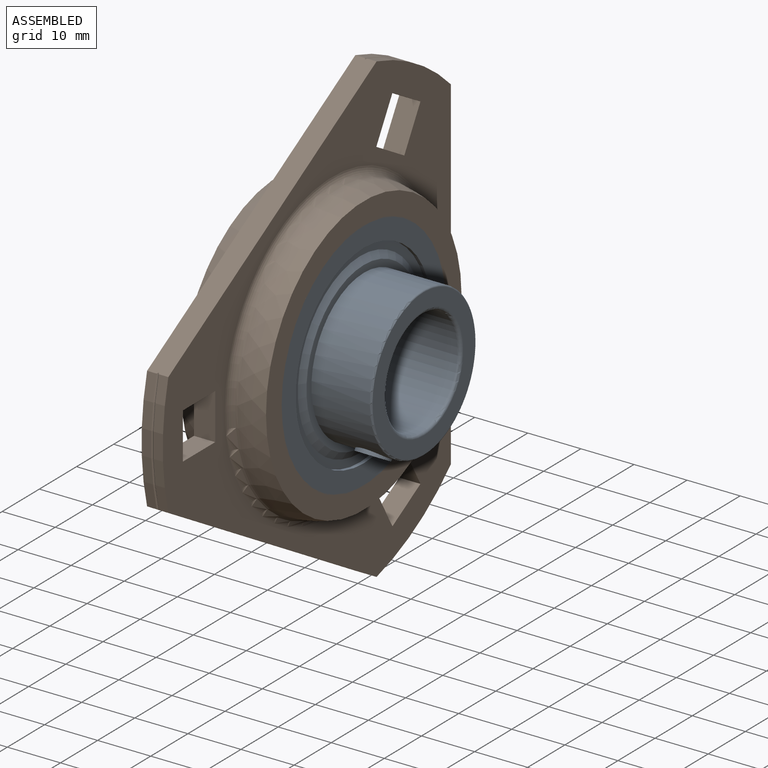
[diagram: assembled view]
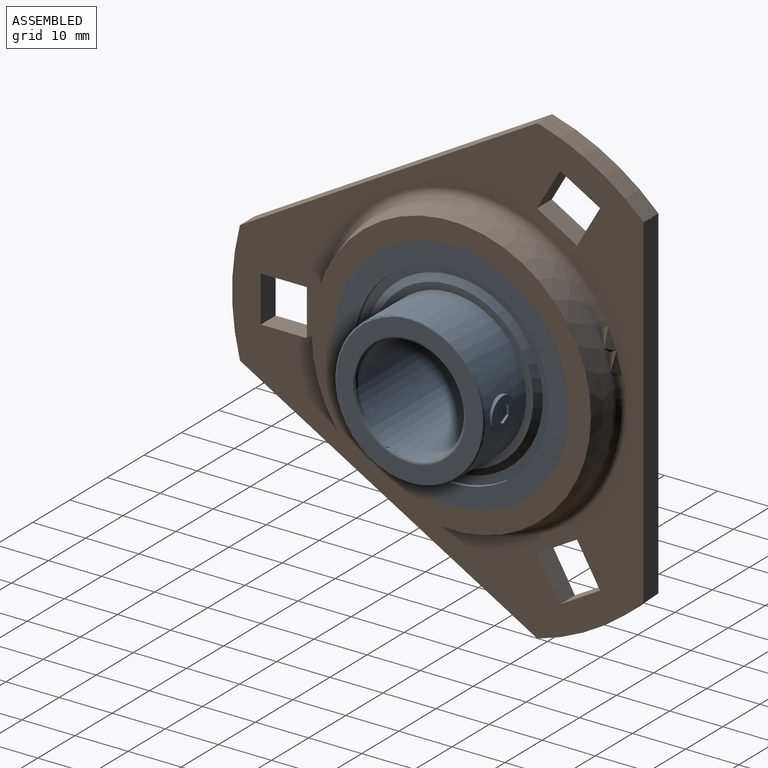
[diagram: assembled view, second angle]
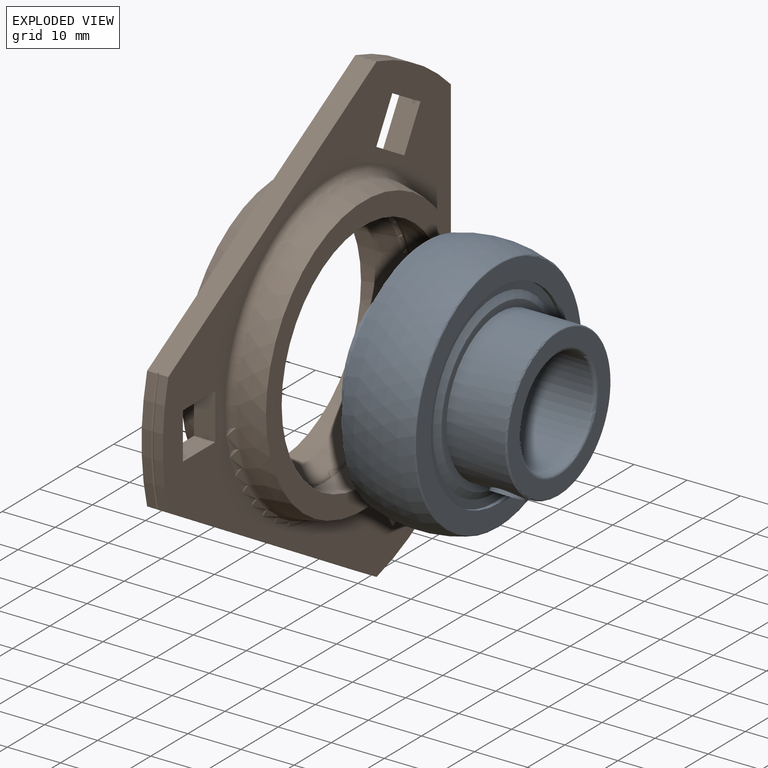
[diagram: exploded view]
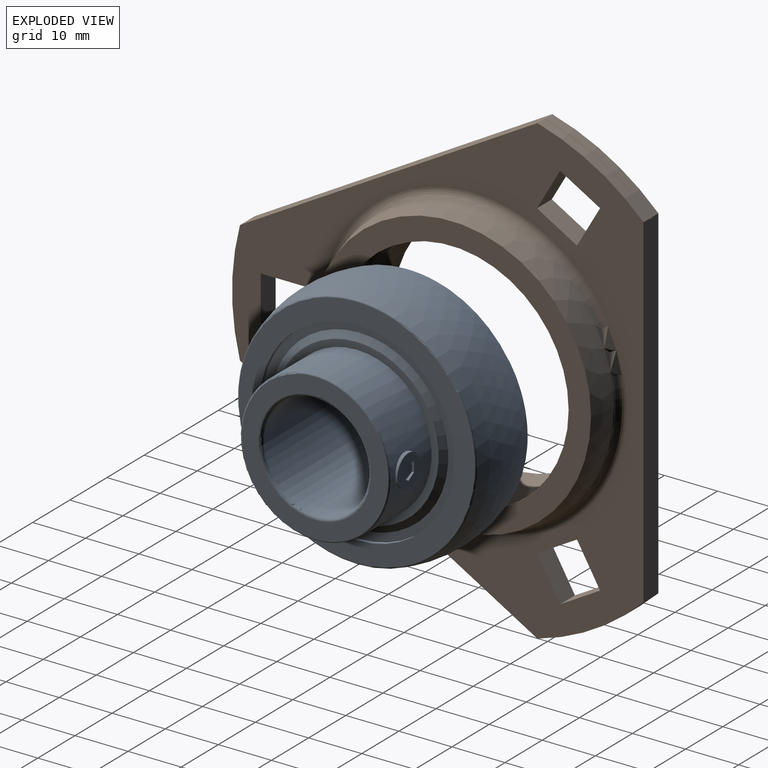
[diagram: exploded view, second angle]
ASSEMBLY  parts=2 mates=3
PART A: 39 faces, bbox 31x48.7x48.7 mm
  f0: cylinder r=18.34mm len=36.68mm, axis (1,0,0), area 80.7mm2, adj f1,f2
  f1: plane 36.68x36.68mm, normal (-1,0,0), area 175mm2, adj f0,f3
  f2: plane 44.42x44.42mm, normal (-1,0,0), area 493.6mm2, adj f0,f4
  f3: cone r=0mm half-angle=62.2deg, axis (1,0,0), area 151.5mm2, adj f1,f5
  f4: torus R=22.21mm, axis (1,0,0), area 53.9mm2, adj f2,f6
  f5: plane 30.85x30.85mm, normal (-1,0,0), area 122.9mm2, adj f3,f7
  f6: sphere r=23.5mm, area 2004.2mm2, adj f4,f8
  f7: cylinder r=14.1mm len=28.2mm, axis (1,0,0), area 505mm2, adj f5,f9
  f8: torus R=22.21mm, axis (1,0,0), area 53.9mm2, adj f6,f10
  f9: plane 28.2x28.2mm, normal (-1,0,0), area 271.6mm2, adj f7,f11
  f10: plane 44.42x44.42mm, normal (1,0,0), area 493.4mm2, adj f8,f12
  f11: torus R=10.6mm, axis (1,0,0), area 60.5mm2, adj f9,f13
  f12: cylinder r=18.34mm len=36.68mm, axis (1,0,0), area 80.7mm2, adj f10,f16
  f13: cylinder r=10mm len=29.8mm, axis (1,0,0), area 1872.4mm2, adj f11,f17
  f14: cylinder r=14.1mm len=3.46mm, axis (1,0,0), area 7.8mm2, adj f18,f19,f20,f21,f22,f23
  f15: cylinder r=14.1mm len=3mm, axis (1,0,0), area 7.8mm2, adj f24,f25,f26,f27,f28,f29
  f16: plane 36.68x36.68mm, normal (1,0,0), area 175mm2, adj f12,f30
  f17: torus R=10.6mm, axis (1,0,0), area 60.5mm2, adj f13,f31
  f18: plane 1.73x0.44mm, normal (1,0,0), area 0.7mm2, adj f14,f19,f23,f32
  f19: plane 1.5x0.87mm, normal (0.5,0,0.87), area 0.8mm2, adj f14,f18,f20,f32
  f20: plane 1.5x0.87mm, normal (-0.5,0,0.87), area 0.8mm2, adj f14,f19,f21,f32
  f21: plane 1.73x0.44mm, normal (-1,0,0), area 0.7mm2, adj f14,f20,f22,f32
  f22: plane 1.5x0.87mm, normal (-0.5,0,-0.87), area 0.8mm2, adj f14,f21,f23,f32
  f23: plane 1.5x0.87mm, normal (0.5,0,-0.87), area 0.8mm2, adj f14,f18,f22,f32
  f24: plane 1.72x1.24mm, normal (1,0,0), area 0.7mm2, adj f15,f25,f29,f33
  f25: plane 1.5x0.97mm, normal (0.5,0.75,-0.43), area 0.8mm2, adj f15,f24,f26,f33
  f26: plane 1.5x0.97mm, normal (-0.5,0.75,-0.43), area 0.8mm2, adj f15,f25,f27,f33
  f27: plane 1.72x1.24mm, normal (-1,0,0), area 0.7mm2, adj f15,f26,f28,f33
  f28: plane 1.5x1.01mm, normal (-0.5,-0.75,0.43), area 0.8mm2, adj f15,f27,f29,f33
  f29: plane 1.5x1.01mm, normal (0.5,-0.75,0.43), area 0.8mm2, adj f15,f24,f28,f33
  f30: cone r=0mm half-angle=62.2deg, axis (-1,0,0), area 151.5mm2, adj f16,f34
  f31: plane 27.6x27.6mm, normal (1,0,0), area 245.3mm2, adj f17,f35
  f32: plane 6x6mm, normal (0,1,0), area 20.5mm2, adj f18,f19,f20,f21,f22,f23,f36
  f33: plane 6x5.2mm, normal (0,-0.5,-0.87), area 20.5mm2, adj f24,f25,f26,f27,f28,f29,f37
  f34: plane 30.85x30.85mm, normal (1,0,0), area 122.9mm2, adj f30,f38
  f35: torus R=13.8mm, axis (1,0,0), area 41.4mm2, adj f31,f38
  f36: cylinder r=3mm len=6mm, axis (0,-1,0), area 10.8mm2, adj f32,f38
  f37: cylinder r=3mm len=6mm, axis (0,0.5,0.87), area 10.8mm2, adj f33,f38
  f38: cylinder r=14.1mm len=28.2mm, axis (1,0,0), area 917.6mm2, adj f34,f35,f36,f37
PART B: 39 faces, bbox 16x77.8x87.9 mm
  f0: torus R=24.48mm, axis (1,0,0), area 229.3mm2, adj f1,f2
  f1: torus R=24.48mm, axis (1,0,0), area 229.3mm2, adj f0,f3
  f2: sphere r=23.5mm, area 1039.6mm2, adj f0,f4
  f3: sphere r=23.5mm, area 1039.6mm2, adj f1,f5
  f4: plane 52.62x52.62mm, normal (-1,0,0), area 640.9mm2, adj f2,f6
  f5: plane 52.62x52.62mm, normal (1,0,0), area 640.9mm2, adj f3,f7
  f6: sphere r=27.5mm, area 808.8mm2, adj f4,f8
  f7: sphere r=27.5mm, area 808.8mm2, adj f5,f14
  f8: torus R=28.79mm, axis (1,0,0), area 380.9mm2, adj f6,f31
  f9: cylinder r=45.5mm len=19.99mm, axis (1,0,0), area 42mm2, adj f10,f13,f31,f34
  f10: cone r=0mm half-angle=45deg, axis (-1,0,0), area 6.6mm2, adj f9,f11,f13,f34
  f11: cone r=0mm half-angle=45deg, axis (1,0,0), area 6.6mm2, adj f10,f12,f13,f34
  f12: cylinder r=45.5mm len=19.99mm, axis (1,0,0), area 42mm2, adj f11,f13,f34,f35
  f13: plane 64.69x4mm, normal (0,1,0), area 258.7mm2, adj f9,f10,f11,f12,f27,f28,f29,f30
  f14: torus R=28.79mm, axis (1,0,0), area 380.9mm2, adj f7,f35
  f15: plane 7.53x4.35mm, normal (0,0.5,-0.87), area 34.8mm2, adj f16,f18,f31,f35
  f16: plane 7.53x4.35mm, normal (0,-0.87,-0.5), area 34.8mm2, adj f15,f17,f31,f35
  f17: plane 7.53x4.35mm, normal (0,-0.5,0.87), area 34.8mm2, adj f16,f18,f31,f35
  f18: plane 7.53x4.35mm, normal (0,0.87,0.5), area 34.8mm2, adj f15,f17,f31,f35
  f19: plane 8.7x4mm, normal (0,0,-1), area 34.8mm2, adj f20,f22,f31,f35
  f20: plane 8.7x4mm, normal (0,-1,0), area 34.8mm2, adj f19,f21,f31,f35
  f21: plane 8.7x4mm, normal (0,0,1), area 34.8mm2, adj f20,f22,f31,f35
  f22: plane 8.7x4mm, normal (0,1,0), area 34.8mm2, adj f19,f21,f31,f35
  f23: plane 7.53x4.35mm, normal (0,0.87,-0.5), area 34.8mm2, adj f24,f26,f31,f35
  f24: plane 7.53x4.35mm, normal (0,-0.5,-0.87), area 34.8mm2, adj f23,f25,f31,f35
  f25: plane 7.53x4.35mm, normal (0,-0.87,0.5), area 34.8mm2, adj f24,f26,f31,f35
  f26: plane 7.53x4.35mm, normal (0,0.5,0.87), area 34.8mm2, adj f23,f25,f31,f35
  f27: cylinder r=45.5mm len=19.99mm, axis (1,0,0), area 42mm2, adj f13,f28,f35,f36
  f28: cone r=0mm half-angle=45deg, axis (1,0,0), area 6.6mm2, adj f13,f27,f29,f36
  f29: cone r=0mm half-angle=45deg, axis (-1,0,0), area 6.6mm2, adj f13,f28,f30,f36
  f30: cylinder r=45.5mm len=19.99mm, axis (1,0,0), area 42mm2, adj f13,f29,f31,f36
  f31: plane 87.77x77.5mm, normal (-1,0,0), area 1866.8mm2, adj f8,f9,f13,f15,f16,f17,f18,f19
  f32: cylinder r=45.5mm len=23.08mm, axis (1,0,0), area 42mm2, adj f31,f33,f34,f36
  f33: cone r=0mm half-angle=45deg, axis (-1,0,0), area 6.6mm2, adj f32,f34,f36,f37
  f34: plane 56.03x32.35mm, normal (0,-0.5,-0.87), area 258.7mm2, adj f9,f10,f11,f12,f31,f32,f33,f35
  f35: plane 87.77x77.5mm, normal (1,0,0), area 1867.4mm2, adj f12,f13,f14,f15,f16,f17,f18,f19
  f36: plane 56.03x32.35mm, normal (0,-0.5,0.87), area 258.7mm2, adj f27,f28,f29,f30,f31,f32,f33,f35
  f37: cone r=0mm half-angle=45deg, axis (1,0,0), area 6.6mm2, adj f33,f34,f36,f38
  f38: cylinder r=45.5mm len=23.08mm, axis (1,0,0), area 42mm2, adj f34,f35,f36,f37
PLACE A t=(2.27,8.37,11.05)mm
PLACE B t=(1.27,8.37,11.05)mm
MATE slider A.f0 <-> B.f0  axis (1,0,0) through (9.27,8.37,11.05)mm
MATE slider B.f0 <-> B.f0  axis (1,0,0) through (9.27,8.37,11.05)mm
MATE planar A.f0 <-> B.f0  axis (1,0,0) through (9.27,8.37,11.05)mm
